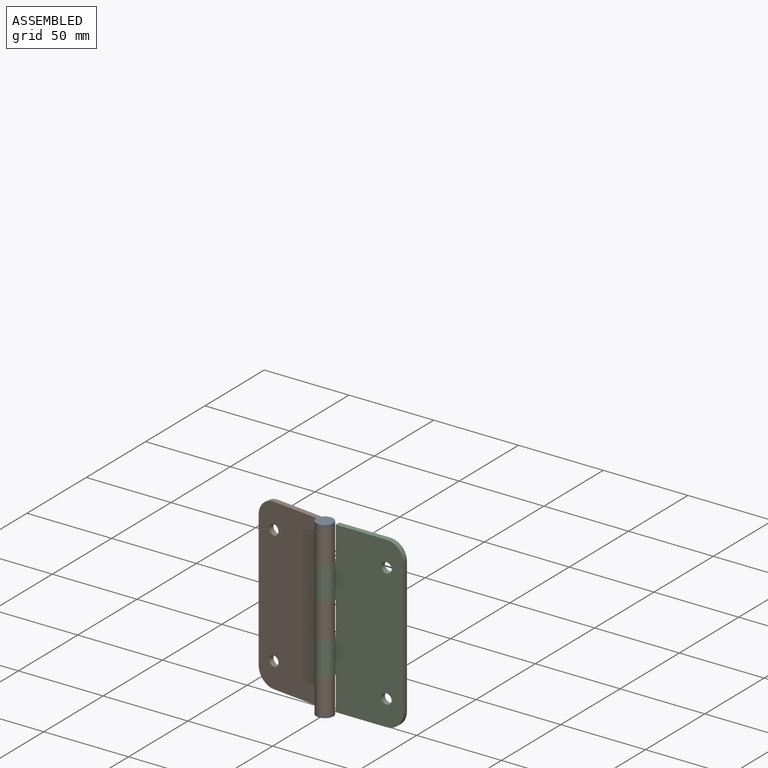
[diagram: assembled view]
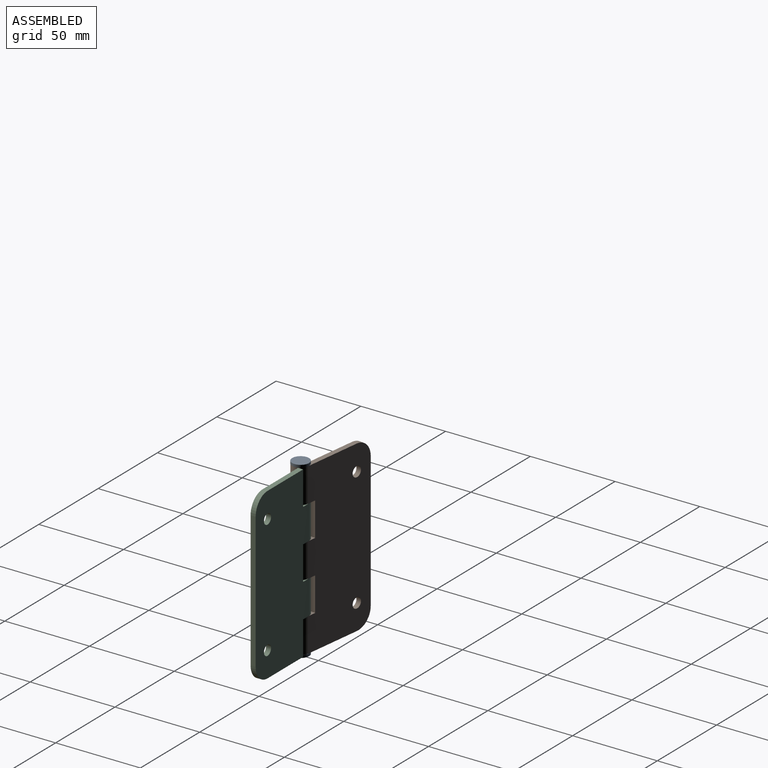
[diagram: assembled view, second angle]
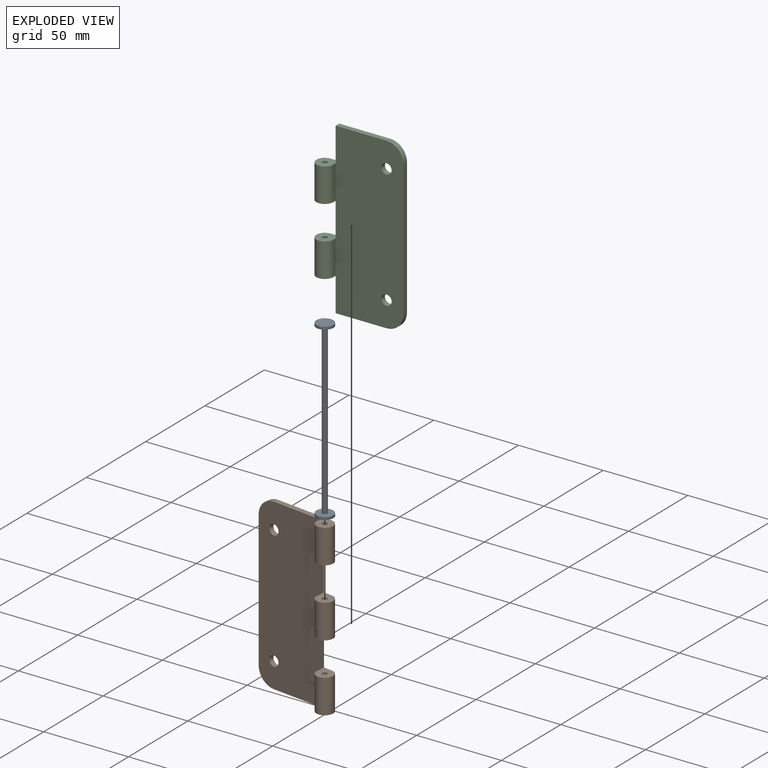
[diagram: exploded view]
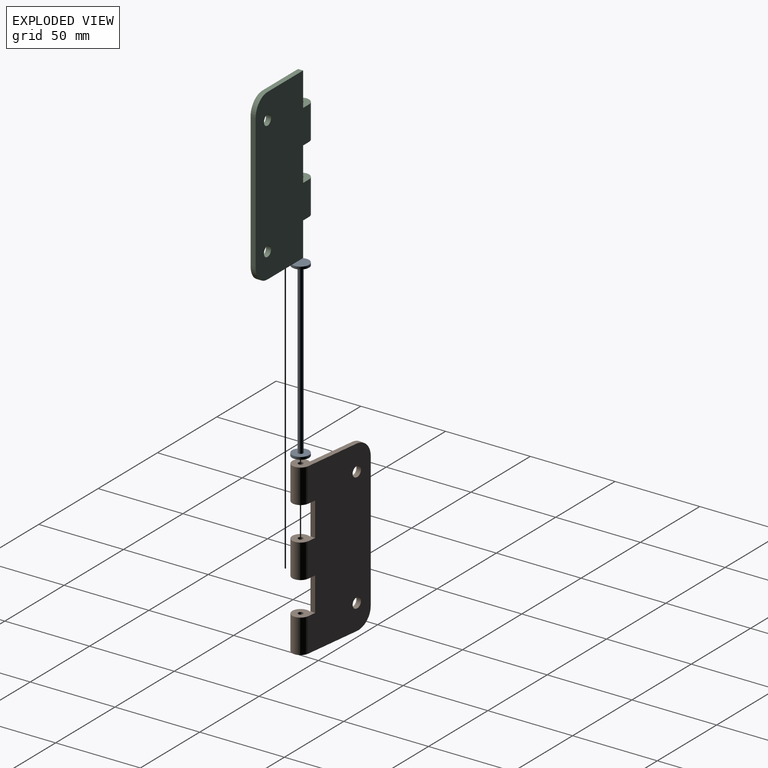
[diagram: exploded view, second angle]
ASSEMBLY  parts=3 mates=2
PART A: 7 faces, bbox 10x10x103 mm
  f0: plane 10x10mm, normal (0,0,1), area 78.5mm2, adj f1
  f1: cylinder r=5mm len=10mm, axis (0,0,1), area 47.1mm2, adj f0,f2
  f2: plane 10x10mm, normal (0,0,-1), area 71.5mm2, adj f1,f3
  f3: cylinder r=1.5mm len=99.99mm, axis (0,0,1), area 942.3mm2, adj f2,f4
  f4: plane 10x10mm, normal (0,0,1), area 71.5mm2, adj f3,f5
  f5: cylinder r=5mm len=10mm, axis (0,0,1), area 47.1mm2, adj f4,f6
  f6: plane 10x10mm, normal (0,0,-1), area 78.5mm2, adj f5
PART B: 21 faces, bbox 49.9x9.9x100 mm
  f0: plane 9.94x9.88mm, normal (0,0,1), area 74.7mm2, adj f1,f10,f12,f13,f16
  f1: plane 20x3mm, normal (1,0,0), area 60mm2, adj f0,f2,f10,f12
  f2: plane 9.94x9.88mm, normal (0,0,-1), area 74.7mm2, adj f1,f10,f12,f14,f18
  f3: plane 9.94x9.88mm, normal (0,0,1), area 74.7mm2, adj f4,f10,f12,f14,f18
  f4: plane 20x3mm, normal (1,0,0), area 60mm2, adj f3,f5,f10,f12
  f5: plane 9.94x9.88mm, normal (0,0,-1), area 74.7mm2, adj f4,f10,f12,f15,f17
  f6: plane 39.94x9.88mm, normal (0,0,1), area 164.7mm2, adj f10,f12,f15,f17,f19
  f7: cylinder r=3mm len=6mm, axis (0,1,0), area 56.5mm2, adj f10,f12
  f8: plane 39.94x9.88mm, normal (0,0,-1), area 164.7mm2, adj f10,f12,f13,f16,f20
  f9: cylinder r=3mm len=6mm, axis (0,1,0), area 56.5mm2, adj f10,f12
  f10: plane 100x45mm, normal (0,1,0), area 4200.5mm2, adj f0,f1,f2,f3,f4,f5,f6,f7
  f11: plane 80x3mm, normal (-1,0,0), area 240mm2, adj f10,f12,f19,f20
  f12: plane 100x40.46mm, normal (0,-1,0), area 3928mm2, adj f0,f1,f2,f3,f4,f5,f6,f7
  f13: cylinder r=4.94mm len=20mm, axis (0,0,1), area 505.4mm2, adj f0,f8,f10,f12
  f14: cylinder r=4.94mm len=20mm, axis (0,0,1), area 505.4mm2, adj f2,f3,f10,f12
  f15: cylinder r=4.94mm len=20mm, axis (0,0,1), area 505.4mm2, adj f5,f6,f10,f12
  f16: cylinder r=1.5mm len=20mm, axis (0,0,1), area 188.5mm2, adj f0,f8
  f17: cylinder r=1.5mm len=20mm, axis (0,0,1), area 188.5mm2, adj f5,f6
  f18: cylinder r=1.5mm len=20mm, axis (0,0,1), area 188.5mm2, adj f2,f3
  f19: cylinder r=10mm len=10mm, axis (0,-1,0), area 47.1mm2, adj f6,f10,f11,f12
  f20: cylinder r=10mm len=10mm, axis (0,1,0), area 47.1mm2, adj f8,f10,f11,f12
PART C: 22 faces, bbox 50x10x100 mm
  f0: plane 10x10mm, normal (0,0,1), area 76.8mm2, adj f5,f12,f13,f17,f19
  f1: plane 10x10mm, normal (0,0,-1), area 76.8mm2, adj f6,f12,f13,f17,f19
  f2: plane 10x10mm, normal (0,0,1), area 76.8mm2, adj f6,f12,f14,f16,f18
  f3: plane 10x10mm, normal (0,0,-1), area 76.8mm2, adj f7,f12,f14,f16,f18
  f4: plane 30x3mm, normal (0,0,1), area 90mm2, adj f5,f12,f15,f21
  f5: plane 20x3mm, normal (-1,0,0), area 60mm2, adj f0,f4,f12,f15
  f6: plane 20x3mm, normal (-1,0,0), area 60mm2, adj f1,f2,f12,f15
  f7: plane 20x3mm, normal (-1,0,0), area 60mm2, adj f3,f8,f12,f15
  f8: plane 30x3mm, normal (0,0,-1), area 90mm2, adj f7,f12,f15,f20
  f9: cylinder r=3mm len=6mm, axis (0,1,0), area 56.5mm2, adj f12,f15
  f10: plane 80x3mm, normal (1,0,0), area 240mm2, adj f12,f15,f20,f21
  f11: cylinder r=3mm len=6mm, axis (0,1,0), area 56.5mm2, adj f12,f15
  f12: plane 100x45mm, normal (0,1,0), area 4100.5mm2, adj f0,f1,f2,f3,f4,f5,f6,f7
  f13: plane 20x2mm, normal (1,0,0), area 40mm2, adj f0,f1,f15,f19
  f14: plane 20x2mm, normal (1,0,0), area 40mm2, adj f2,f3,f15,f18
  f15: plane 100x40mm, normal (0,-1,0), area 3900.5mm2, adj f4,f5,f6,f7,f8,f9,f10,f11
  f16: cylinder r=1.5mm len=20mm, axis (0,0,1), area 188.5mm2, adj f2,f3
  f17: cylinder r=1.5mm len=20mm, axis (0,0,1), area 188.5mm2, adj f0,f1
  f18: cylinder r=5mm len=20mm, axis (0,0,1), area 471.2mm2, adj f2,f3,f12,f14
  f19: cylinder r=5mm len=20mm, axis (0,0,1), area 471.2mm2, adj f0,f1,f12,f13
  f20: cylinder r=10mm len=10mm, axis (0,-1,0), area 47.1mm2, adj f8,f10,f12,f15
  f21: cylinder r=10mm len=10mm, axis (0,1,0), area 47.1mm2, adj f4,f10,f12,f15
PLACE A t=(18.79,-58.98,2.99)mm
PLACE B rot(axis=(0,0,-1),7.2deg) t=(-84.62,-55.68,1.17)mm
PLACE C t=(-131.85,-53.98,1.17)mm fixed
MATE revolute A.f1 <-> B.f13  axis (0,0,1) through (-97.88,-58.98,-38.05)mm
MATE revolute C.f16 <-> B.f13  axis (0,0,-1) through (-97.88,-58.98,-18.05)mm
